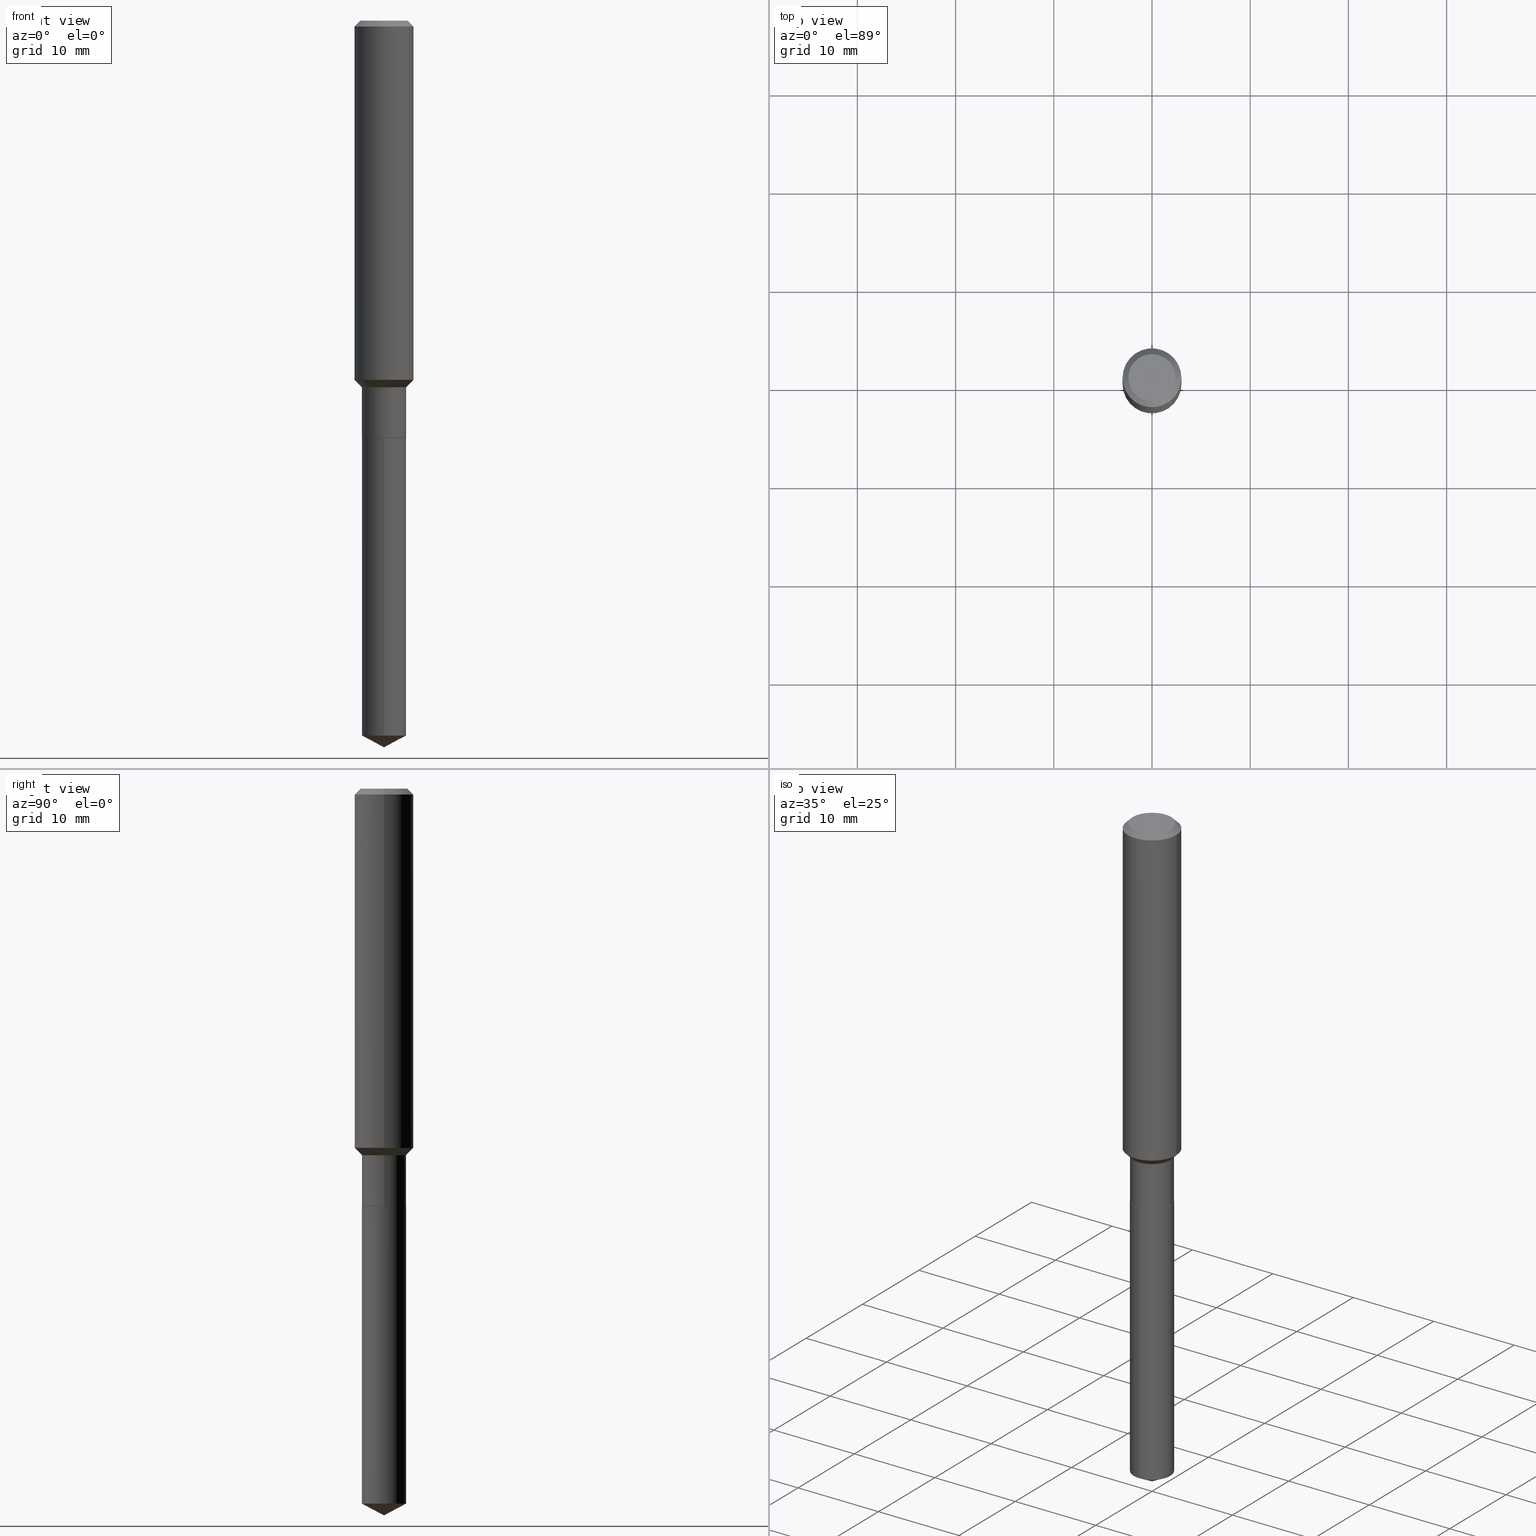
[diagram: canonical four-view strip — front | top / right | iso, engineering-drawing reading convention]
A machine part, canonical four-view strip (front | top / right | iso — engineering-drawing reading convention). The complete STEP part file that produces these views, byte-faithful:
ISO-10303-21;
HEADER;
FILE_DESCRIPTION (( 'STEP AP203' ),
    '1' );
FILE_NAME ('65175.STEP',
    '2024-04-24T20:57:34',
    ( '' ),
    ( '' ),
    'SwSTEP 2.0',
    'SolidWorks 2023',
    '' );
FILE_SCHEMA (( 'CONFIG_CONTROL_DESIGN' ));
ENDSEC;

DATA;
#1 = DIRECTION ( 'NONE',  ( -0.7071067811865491270, 7.493145998870360471E-15, 0.7071067811865459074 ) ) ;
#2 = CC_DESIGN_PERSON_AND_ORGANIZATION_ASSIGNMENT ( #115, #348, ( #235 ) ) ;
#3 = DIMENSIONAL_EXPONENTS ( 1.000000000000000000, 0.000000000000000000, 0.000000000000000000, 0.000000000000000000, 0.000000000000000000, 0.000000000000000000, 0.000000000000000000 ) ;
#4 = FACE_OUTER_BOUND ( 'NONE', #179, .T. ) ;
#5 = CIRCLE ( 'NONE', #82, 0.1180999999999999966 ) ;
#6 = CIRCLE ( 'NONE', #28, 0.08859999999999999820 ) ;
#7 = LINE ( 'NONE', #49, #311 ) ;
#8 = CYLINDRICAL_SURFACE ( 'NONE', #333, 0.1181000000000000799 ) ;
#9 = CARTESIAN_POINT ( 'NONE',  ( 4.090780218986497603E-29, -5.840549983616814265E-15, -1.672800000000000287 ) ) ;
#10 = CALENDAR_DATE ( 2024, 24, 4 ) ;
#11 = ADVANCED_FACE ( 'NONE', ( #305 ), #200, .T. ) ;
#12 = PERSON_AND_ORGANIZATION ( #246, #350 ) ;
#13 = ORIENTED_EDGE ( 'NONE', *, *, #298, .F. ) ;
#14 = AXIS2_PLACEMENT_3D ( 'NONE', #481, #19, #164 ) ;
#15 = MANIFOLD_SOLID_BREP ( 'Body-Move/Copy2[1]', #442 ) ;
#16 = SECURITY_CLASSIFICATION_LEVEL ( 'unclassified' ) ;
#17 = ORIENTED_EDGE ( 'NONE', *, *, #309, .F. ) ;
#18 = MANIFOLD_SOLID_BREP ( 'Body-Move/Copy2[2]', #163 ) ;
#19 = DIRECTION ( 'NONE',  ( -2.445523282040030004E-29, 3.491403326318364941E-15, 1.000000000000000000 ) ) ;
#20 = CIRCLE ( 'NONE', #147, 0.08859999999999999820 ) ;
#21 = VECTOR ( 'NONE', #34, 39.37007874015748143 ) ;
#22 = ORIENTED_EDGE ( 'NONE', *, *, #486, .T. ) ;
#23 = LINE ( 'NONE', #167, #73 ) ;
#24 = DIRECTION ( 'NONE',  ( -6.982962677686265133E-15, -1.000000000000000000, 3.083349879982238325E-15 ) ) ;
#25 = VERTEX_POINT ( 'NONE', #458 ) ;
#26 = CARTESIAN_POINT ( 'NONE',  ( 0.1180999999999999966, -9.071566814582237199E-16, -0.02362000000000014088 ) ) ;
#27 = CARTESIAN_POINT ( 'NONE',  ( -0.1180999999999999966, 7.422191030112725094E-16, -0.02362000000000014088 ) ) ;
#28 = AXIS2_PLACEMENT_3D ( 'NONE', #403, #63, #440 ) ;
#29 = ORIENTED_EDGE ( 'NONE', *, *, #205, .F. ) ;
#30 = CARTESIAN_POINT ( 'NONE',  ( 4.092002953389589284E-29, -5.842295724286235768E-15, -1.673300000000000232 ) ) ;
#31 = EDGE_LOOP ( 'NONE', ( #306, #213, #102, #408 ) ) ;
#32 = CARTESIAN_POINT ( 'NONE',  ( 0.08809999999999999776, -6.457494736190395714E-15, -1.673300000000000232 ) ) ;
#33 = ORIENTED_EDGE ( 'NONE', *, *, #55, .T. ) ;
#34 = DIRECTION ( 'NONE',  ( -2.445468806185136877E-29, 3.491481338843145188E-15, 1.000000000000000000 ) ) ;
#35 = CIRCLE ( 'NONE', #231, 0.09447999999999998066 ) ;
#36 = LINE ( 'NONE', #386, #366 ) ;
#37 = ADVANCED_FACE ( 'NONE', ( #336 ), #346, .T. ) ;
#38 = LINE ( 'NONE', #189, #210 ) ;
#39 = DIRECTION ( 'NONE',  ( -6.982962677686265133E-15, -1.000000000000000000, 3.083349879982238325E-15 ) ) ;
#40 = CARTESIAN_POINT ( 'NONE',  ( 7.124789128529243062E-29, -1.017185445089592806E-14, -2.913400000000000212 ) ) ;
#41 = DIRECTION ( 'NONE',  ( -6.165590087286836029E-15, -0.8829475928589264333, 0.4694715627858916385 ) ) ;
#42 = COORDINATED_UNIVERSAL_TIME_OFFSET ( 5, 0, .BEHIND. ) ;
#43 = AXIS2_PLACEMENT_3D ( 'NONE', #289, #97, #107 ) ;
#44 = SECURITY_CLASSIFICATION ( '', '', #16 ) ;
#45 = EDGE_CURVE ( 'NONE', #290, #204, #36, .T. ) ;
#46 = DIRECTION ( 'NONE',  ( -2.445468806185136597E-29, 3.491481338843145583E-15, 1.000000000000000000 ) ) ;
#47 = APPROVAL_ROLE ( '' ) ;
#48 = ADVANCED_FACE ( 'NONE', ( #111 ), #228, .T. ) ;
#49 = CARTESIAN_POINT ( 'NONE',  ( -0.1181000000000000799, 8.391509709326788873E-16, -5.809262341591047988E-30 ) ) ;
#50 = LOCAL_TIME ( 16, 57, 34.00000000000000000, #42 ) ;
#51 = CC_DESIGN_PERSON_AND_ORGANIZATION_ASSIGNMENT ( #236, #196, ( #359 ) ) ;
#52 = ORIENTED_EDGE ( 'NONE', *, *, #45, .T. ) ;
#53 = DIRECTION ( 'NONE',  ( -1.000000000000000000, 6.982962677686265922E-15, -4.876176775795935793E-29 ) ) ;
#54 = CIRCLE ( 'NONE', #347, 0.08809999999999999776 ) ;
#55 = EDGE_CURVE ( 'NONE', #105, #329, #463, .T. ) ;
#56 = EDGE_LOOP ( 'NONE', ( #29, #397, #62, #361 ) ) ;
#57 = EDGE_CURVE ( 'NONE', #253, #204, #20, .T. ) ;
#58 = ORIENTED_EDGE ( 'NONE', *, *, #57, .T. ) ;
#59 = CARTESIAN_POINT ( 'NONE',  ( -0.08859999999999998432, 6.295408638834486533E-16, -4.358176489965845566E-30 ) ) ;
#60 = LINE ( 'NONE', #218, #21 ) ;
#61 = EDGE_CURVE ( 'NONE', #25, #288, #90, .T. ) ;
#62 = ORIENTED_EDGE ( 'NONE', *, *, #448, .T. ) ;
#63 = DIRECTION ( 'NONE',  ( -2.445468806185136597E-29, 3.491481338843145583E-15, 1.000000000000000000 ) ) ;
#64 = AXIS2_PLACEMENT_3D ( 'NONE', #89, #96, #202 ) ;
#65 = ORIENTED_EDGE ( 'NONE', *, *, #86, .T. ) ;
#66 = CARTESIAN_POINT ( 'NONE',  ( 5.776197320209327532E-31, -8.246878922347559293E-17, -0.02362000000000014088 ) ) ;
#67 = ORIENTED_EDGE ( 'NONE', *, *, #125, .F. ) ;
#68 = CARTESIAN_POINT ( 'NONE',  ( 0.000000000000000000, 0.000000000000000000, 0.000000000000000000 ) ) ;
#69 = CARTESIAN_POINT ( 'NONE',  ( 4.716267017698007905E-46, -6.733579360998555036E-32, -1.928573779297252010E-17 ) ) ;
#70 = DIRECTION ( 'NONE',  ( -6.982962677686265133E-15, -1.000000000000000000, 3.083349879982238325E-15 ) ) ;
#71 = DIRECTION ( 'NONE',  ( 1.000000000000000000, -6.982962677686270655E-15, 0.000000000000000000 ) ) ;
#72 = AXIS2_PLACEMENT_3D ( 'NONE', #76, #420, #300 ) ;
#73 = VECTOR ( 'NONE', #285, 39.37007874015748143 ) ;
#74 = CARTESIAN_POINT ( 'NONE',  ( 4.092002953389589284E-29, -5.842295724286235768E-15, -1.673300000000000232 ) ) ;
#75 = DATE_AND_TIME ( #415, #275 ) ;
#76 = CARTESIAN_POINT ( 'NONE',  ( 3.593616410689059139E-29, -5.130731827430003304E-15, -1.469500000000000250 ) ) ;
#77 = DIRECTION ( 'NONE',  ( 1.000000000000000000, 0.000000000000000000, 0.000000000000000000 ) ) ;
#78 = UNCERTAINTY_MEASURE_WITH_UNIT (LENGTH_MEASURE( 1.000000000000000082E-05 ), #297, 'distance_accuracy_value', 'NONE');
#79 = DIRECTION ( 'NONE',  ( 1.000000000000000000, -6.982962677686264344E-15, 0.000000000000000000 ) ) ;
#80 = ORIENTED_EDGE ( 'NONE', *, *, #486, .F. ) ;
#81 = COORDINATED_UNIVERSAL_TIME_OFFSET ( 5, 0, .BEHIND. ) ;
#82 = AXIS2_PLACEMENT_3D ( 'NONE', #66, #446, #168 ) ;
#83 = EDGE_LOOP ( 'NONE', ( #162, #95, #247, #209 ) ) ;
#84 = VECTOR ( 'NONE', #428, 39.37007874015748143 ) ;
#85 = APPROVAL_PERSON_ORGANIZATION ( #351, #411, #238 ) ;
#86 = EDGE_CURVE ( 'NONE', #135, #487, #377, .T. ) ;
#87 = CIRCLE ( 'NONE', #368, 0.08859999999999999820 ) ;
#88 = EDGE_LOOP ( 'NONE', ( #292, #198, #296, #149 ) ) ;
#89 = CARTESIAN_POINT ( 'NONE',  ( 4.092002953389589284E-29, -5.842295724286235768E-15, -1.673300000000000232 ) ) ;
#90 = CIRCLE ( 'NONE', #414, 0.08859999999999999820 ) ;
#91 = AXIS2_PLACEMENT_3D ( 'NONE', #373, #146, #79 ) ;
#92 = ORIENTED_EDGE ( 'NONE', *, *, #349, .T. ) ;
#93 = CARTESIAN_POINT ( 'NONE',  ( 0.1180999999999999966, -8.926936027602933910E-16, -0.02362000000000014088 ) ) ;
#94 = DIRECTION ( 'NONE',  ( -2.445468806185136597E-29, 3.491481338843145583E-15, 1.000000000000000000 ) ) ;
#95 = ORIENTED_EDGE ( 'NONE', *, *, #298, .T. ) ;
#96 = DIRECTION ( 'NONE',  ( -2.438088387897960049E-29, 3.491481338843145188E-15, 1.000000000000000000 ) ) ;
#97 = DIRECTION ( 'NONE',  ( -2.445468806185136597E-29, 3.491481338843145583E-15, 1.000000000000000000 ) ) ;
#98 = ORIENTED_EDGE ( 'NONE', *, *, #221, .F. ) ;
#99 = CARTESIAN_POINT ( 'NONE',  ( 2.358133508849003952E-46, -3.366789680499277518E-32, -9.642868896486260050E-18 ) ) ;
#100 = DIRECTION ( 'NONE',  ( 1.000000000000000000, -6.982962677686264344E-15, 0.000000000000000000 ) ) ;
#101 = CIRCLE ( 'NONE', #117, 0.1181000000000001632 ) ;
#102 = ORIENTED_EDGE ( 'NONE', *, *, #55, .F. ) ;
#103 = DIRECTION ( 'NONE',  ( 1.000000000000000000, -6.982962677686264344E-15, 0.000000000000000000 ) ) ;
#104 = DIRECTION ( 'NONE',  ( -0.7071067811865459074, 2.468850131082240100E-15, -0.7071067811865491270 ) ) ;
#105 = VERTEX_POINT ( 'NONE', #337 ) ;
#106 = APPLICATION_PROTOCOL_DEFINITION ( 'international standard', 'config_control_design', 1994, #269 ) ;
#107 = DIRECTION ( 'NONE',  ( 1.000000000000000000, -6.982962677686264344E-15, 0.000000000000000000 ) ) ;
#108 = CARTESIAN_POINT ( 'NONE',  ( 7.009489104862845842E-29, -1.000750687911291857E-14, -2.866290544354793468 ) ) ;
#109 =( NAMED_UNIT ( * ) PLANE_ANGLE_UNIT ( ) SI_UNIT ( $, .RADIAN. ) );
#110 =( GEOMETRIC_REPRESENTATION_CONTEXT ( 3 ) GLOBAL_UNCERTAINTY_ASSIGNED_CONTEXT ( ( #78 ) ) GLOBAL_UNIT_ASSIGNED_CONTEXT ( ( #297, #109, #255 ) ) REPRESENTATION_CONTEXT ( 'NONE', 'WORKASPACE' ) );
#111 = FACE_OUTER_BOUND ( 'NONE', #374, .T. ) ;
#112 = EDGE_LOOP ( 'NONE', ( #80, #52, #250 ) ) ;
#113 = EDGE_LOOP ( 'NONE', ( #268, #243, #436, #13 ) ) ;
#114 = ADVANCED_FACE ( 'NONE', ( #4 ), #454, .F. ) ;
#115 = PERSON_AND_ORGANIZATION ( #246, #350 ) ;
#116 = APPROVAL_STATUS ( 'not_yet_approved' ) ;
#117 = AXIS2_PLACEMENT_3D ( 'NONE', #484, #399, #437 ) ;
#118 = CC_DESIGN_APPROVAL ( #321, ( #44 ) ) ;
#119 = EDGE_CURVE ( 'NONE', #329, #480, #38, .T. ) ;
#120 = DIRECTION ( 'NONE',  ( 2.438088387897960049E-29, -3.491481338843145188E-15, -1.000000000000000000 ) ) ;
#121 = EDGE_CURVE ( 'NONE', #288, #25, #356, .T. ) ;
#122 = ADVANCED_BREP_SHAPE_REPRESENTATION ( '65175', ( #15, #18, #187 ), #110 ) ;
#123 = CYLINDRICAL_SURFACE ( 'NONE', #284, 0.1181000000000000799 ) ;
#124 = ORIENTED_EDGE ( 'NONE', *, *, #61, .F. ) ;
#125 = EDGE_CURVE ( 'NONE', #478, #401, #5, .T. ) ;
#126 = VECTOR ( 'NONE', #207, 39.37007874015748143 ) ;
#127 = CARTESIAN_POINT ( 'NONE',  ( 7.124787529895424657E-29, -1.017185445089592491E-14, -2.913400000000000212 ) ) ;
#128 = ORIENTED_EDGE ( 'NONE', *, *, #457, .F. ) ;
#129 = FACE_OUTER_BOUND ( 'NONE', #421, .T. ) ;
#130 = CC_DESIGN_DATE_AND_TIME_ASSIGNMENT ( #307, #426, ( #235 ) ) ;
#131 = DIRECTION ( 'NONE',  ( 2.445468806185136597E-29, -3.491481338843145583E-15, -1.000000000000000000 ) ) ;
#132 = EDGE_LOOP ( 'NONE', ( #229, #489, #215, #474 ) ) ;
#133 = FACE_OUTER_BOUND ( 'NONE', #317, .T. ) ;
#134 = DIRECTION ( 'NONE',  ( -2.445523282040030284E-29, 3.491403326318364941E-15, 1.000000000000000000 ) ) ;
#135 = VERTEX_POINT ( 'NONE', #208 ) ;
#136 = LENGTH_MEASURE_WITH_UNIT ( LENGTH_MEASURE( 0.02539999999999999897 ), #216 );
#137 = AXIS2_PLACEMENT_3D ( 'NONE', #176, #482, #71 ) ;
#138 = CARTESIAN_POINT ( 'NONE',  ( -6.186904932429332373E-16, -0.08860000000001003184, -2.866290544354793024 ) ) ;
#139 = ORIENTED_EDGE ( 'NONE', *, *, #217, .T. ) ;
#140 = FACE_OUTER_BOUND ( 'NONE', #113, .T. ) ;
#141 = CARTESIAN_POINT ( 'NONE',  ( 4.092002953389589284E-29, -5.842295724286235768E-15, -1.673300000000000232 ) ) ;
#142 = ADVANCED_FACE ( 'NONE', ( #140 ), #404, .T. ) ;
#143 = DIRECTION ( 'NONE',  ( 2.445468806185136597E-29, -3.491481338843145583E-15, -1.000000000000000000 ) ) ;
#144 = CARTESIAN_POINT ( 'NONE',  ( 0.09447999999999998066, -7.704367267948738690E-16, -1.928573779296752193E-17 ) ) ;
#145 = EDGE_CURVE ( 'NONE', #483, #332, #470, .T. ) ;
#146 = DIRECTION ( 'NONE',  ( -2.445468806185136597E-29, 3.491481338843145583E-15, 1.000000000000000000 ) ) ;
#147 = AXIS2_PLACEMENT_3D ( 'NONE', #108, #376, #342 ) ;
#148 = VECTOR ( 'NONE', #186, 39.37007874015748143 ) ;
#149 = ORIENTED_EDGE ( 'NONE', *, *, #467, .F. ) ;
#150 = DIRECTION ( 'NONE',  ( 1.000000000000000000, -6.982962677686266711E-15, 4.876176775795936353E-29 ) ) ;
#151 = ORIENTED_EDGE ( 'NONE', *, *, #170, .F. ) ;
#152 = CARTESIAN_POINT ( 'NONE',  ( -0.09447999999999998066, 7.009847083995354710E-16, -1.928573779297727792E-17 ) ) ;
#153 = PERSON_AND_ORGANIZATION_ROLE ( 'design_supplier' ) ;
#154 = VECTOR ( 'NONE', #395, 39.37007874015748143 ) ;
#155 = CALENDAR_DATE ( 2024, 24, 4 ) ;
#156 = ORIENTED_EDGE ( 'NONE', *, *, #274, .F. ) ;
#157 = APPROVAL_PERSON_ORGANIZATION ( #339, #419, #452 ) ;
#158 = PRODUCT ( '65175', '65175', '', ( #330 ) ) ;
#159 = DATE_AND_TIME ( #155, #381 ) ;
#160 = ORIENTED_EDGE ( 'NONE', *, *, #61, .T. ) ;
#161 = DESIGN_CONTEXT ( 'detailed design', #269, 'design' ) ;
#162 = ORIENTED_EDGE ( 'NONE', *, *, #363, .F. ) ;
#163 = CLOSED_SHELL ( 'NONE', ( #263, #37, #443, #11, #335, #355, #142, #315, #184, #430, #400, #490 ) ) ;
#164 = DIRECTION ( 'NONE',  ( -6.982962677686266711E-15, -1.000000000000000000, 3.541896320645556530E-15 ) ) ;
#165 = DIRECTION ( 'NONE',  ( -6.982962677686265133E-15, -1.000000000000000000, 6.166699759964476650E-15 ) ) ;
#166 = ORIENTED_EDGE ( 'NONE', *, *, #145, .T. ) ;
#167 = CARTESIAN_POINT ( 'NONE',  ( -6.186904932429622279E-16, -0.08860000000000584075, -1.673299999999999788 ) ) ;
#168 = DIRECTION ( 'NONE',  ( 1.000000000000000000, -6.982962677686266711E-15, 0.000000000000000000 ) ) ;
#169 = VERTEX_POINT ( 'NONE', #32 ) ;
#170 = EDGE_CURVE ( 'NONE', #253, #25, #476, .T. ) ;
#171 = CARTESIAN_POINT ( 'NONE',  ( -0.1181000000000001632, -4.188582157001450874E-15, -1.440000000000000169 ) ) ;
#172 = AXIS2_PLACEMENT_3D ( 'NONE', #74, #223, #382 ) ;
#173 = CONICAL_SURFACE ( 'NONE', #357, 74.04434902938362484, 1.082104136236486935 ) ;
#174 = CARTESIAN_POINT ( 'NONE',  ( 4.092002953389589284E-29, -5.842295724286235768E-15, -1.673300000000000232 ) ) ;
#175 = ORIENTED_EDGE ( 'NONE', *, *, #227, .T. ) ;
#176 = CARTESIAN_POINT ( 'NONE',  ( 3.593616410689059139E-29, -5.130731827430003304E-15, -1.469500000000000250 ) ) ;
#177 = EDGE_LOOP ( 'NONE', ( #367, #65, #92, #156 ) ) ;
#178 = CARTESIAN_POINT ( 'NONE',  ( 5.776197320209327532E-31, -8.246878922347559293E-17, -0.02362000000000014088 ) ) ;
#179 = EDGE_LOOP ( 'NONE', ( #206, #160 ) ) ;
#180 = CARTESIAN_POINT ( 'NONE',  ( 0.08859999999999999820, -6.459240476859818007E-15, -1.672800000000000287 ) ) ;
#181 = LINE ( 'NONE', #439, #464 ) ;
#182 = VECTOR ( 'NONE', #460, 39.37007874015748143 ) ;
#183 = DIRECTION ( 'NONE',  ( -2.445468806185136597E-29, 3.491481338843145583E-15, 1.000000000000000000 ) ) ;
#184 = ADVANCED_FACE ( 'NONE', ( #291 ), #251, .T. ) ;
#185 = CARTESIAN_POINT ( 'NONE',  ( 5.776197320209327532E-31, -8.246878922347559293E-17, -0.02362000000000014088 ) ) ;
#186 = DIRECTION ( 'NONE',  ( 6.273719981627766865E-15, 0.8829475928589298750, 0.4694715627858853657 ) ) ;
#187 = AXIS2_PLACEMENT_3D ( 'NONE', #68, #418, #77 ) ;
#188 = DIRECTION ( 'NONE',  ( 1.000000000000000000, -6.982962677686265922E-15, 4.876176775795935232E-29 ) ) ;
#189 = CARTESIAN_POINT ( 'NONE',  ( -0.08859999999999998432, -4.501190963546554453E-15, -1.469500000000000250 ) ) ;
#190 = DIRECTION ( 'NONE',  ( -2.445468806185136597E-29, 3.491481338843145583E-15, 1.000000000000000000 ) ) ;
#191 = CARTESIAN_POINT ( 'NONE',  ( 3.593616410689059139E-29, -5.130731827430003304E-15, -1.469500000000000250 ) ) ;
#192 = AXIS2_PLACEMENT_3D ( 'NONE', #212, #371, #407 ) ;
#193 = DIRECTION ( 'NONE',  ( -2.445468806185136597E-29, 3.491481338843145583E-15, 1.000000000000000000 ) ) ;
#194 = SHAPE_DEFINITION_REPRESENTATION ( #341, #122 ) ;
#195 = EDGE_CURVE ( 'NONE', #487, #135, #6, .T. ) ;
#196 = PERSON_AND_ORGANIZATION_ROLE ( 'creator' ) ;
#197 = EDGE_LOOP ( 'NONE', ( #139, #166 ) ) ;
#198 = ORIENTED_EDGE ( 'NONE', *, *, #170, .T. ) ;
#199 = DIRECTION ( 'NONE',  ( 0.7071067811865491270, -2.468850131082274021E-15, 0.7071067811865459074 ) ) ;
#200 = CONICAL_SURFACE ( 'NONE', #72, 0.08859999999999998432, 0.7853981633974506105 ) ;
#201 = AXIS2_PLACEMENT_3D ( 'NONE', #178, #131, #488 ) ;
#202 = DIRECTION ( 'NONE',  ( 1.000000000000000000, -6.982962677686265922E-15, 4.876176775795935793E-29 ) ) ;
#203 = LOCAL_TIME ( 16, 57, 34.00000000000000000, #81 ) ;
#204 = VERTEX_POINT ( 'NONE', #138 ) ;
#205 = EDGE_CURVE ( 'NONE', #417, #135, #299, .T. ) ;
#206 = ORIENTED_EDGE ( 'NONE', *, *, #121, .T. ) ;
#207 = DIRECTION ( 'NONE',  ( -2.445468806185136877E-29, 3.491481338843145188E-15, 1.000000000000000000 ) ) ;
#208 = CARTESIAN_POINT ( 'NONE',  ( -0.08859999999999999820, -4.856100041639960723E-15, -1.672800000000000287 ) ) ;
#209 = ORIENTED_EDGE ( 'NONE', *, *, #302, .F. ) ;
#210 = VECTOR ( 'NONE', #1, 39.37007874015748143 ) ;
#211 = AXIS2_PLACEMENT_3D ( 'NONE', #435, #94, #249 ) ;
#212 = CARTESIAN_POINT ( 'NONE',  ( 5.776197320209327532E-31, -8.246878922347559293E-17, -0.02362000000000014088 ) ) ;
#213 = ORIENTED_EDGE ( 'NONE', *, *, #475, .T. ) ;
#214 = DIRECTION ( 'NONE',  ( 1.000000000000000000, -6.982962677686270655E-15, 0.000000000000000000 ) ) ;
#215 = ORIENTED_EDGE ( 'NONE', *, *, #195, .F. ) ;
#216 =( LENGTH_UNIT ( ) NAMED_UNIT ( * ) SI_UNIT ( $, .METRE. ) );
#217 = EDGE_CURVE ( 'NONE', #332, #483, #35, .T. ) ;
#218 = CARTESIAN_POINT ( 'NONE',  ( 0.1181000000000000799, -8.246878922347486570E-16, 5.758764772215004644E-30 ) ) ;
#219 = DIRECTION ( 'NONE',  ( 1.000000000000000000, -6.982962677686270655E-15, 0.000000000000000000 ) ) ;
#220 = CONICAL_SURFACE ( 'NONE', #14, 74.04434902938362484, 1.082104136236486935 ) ;
#221 = EDGE_CURVE ( 'NONE', #466, #480, #101, .T. ) ;
#222 = DIRECTION ( 'NONE',  ( -6.982962677686266711E-15, -1.000000000000000000, 3.541896320645556530E-15 ) ) ;
#223 = DIRECTION ( 'NONE',  ( 2.445523282040029724E-29, -3.491403326318364941E-15, -1.000000000000000000 ) ) ;
#224 = CC_DESIGN_APPROVAL ( #419, ( #235 ) ) ;
#225 = LINE ( 'NONE', #40, #148 ) ;
#226 = CYLINDRICAL_SURFACE ( 'NONE', #241, 0.08859999999999998432 ) ;
#227 = EDGE_CURVE ( 'NONE', #332, #401, #295, .T. ) ;
#228 = CYLINDRICAL_SURFACE ( 'NONE', #485, 0.08859999999999999820 ) ;
#229 = ORIENTED_EDGE ( 'NONE', *, *, #309, .T. ) ;
#230 = AXIS2_PLACEMENT_3D ( 'NONE', #185, #143, #410 ) ;
#231 = AXIS2_PLACEMENT_3D ( 'NONE', #69, #245, #479 ) ;
#232 = CALENDAR_DATE ( 2024, 24, 4 ) ;
#233 = CC_DESIGN_SECURITY_CLASSIFICATION ( #44, ( #359 ) ) ;
#234 = DIRECTION ( 'NONE',  ( -2.445468806185136597E-29, 3.491481338843145583E-15, 1.000000000000000000 ) ) ;
#235 = PRODUCT_DEFINITION ( 'UNKNOWN', '', #359, #161 ) ;
#236 = PERSON_AND_ORGANIZATION ( #246, #350 ) ;
#237 = EDGE_CURVE ( 'NONE', #417, #169, #54, .T. ) ;
#238 = APPROVAL_ROLE ( '' ) ;
#239 = CARTESIAN_POINT ( 'NONE',  ( -0.08809999999999999776, -5.213658346907477404E-15, -1.673300000000000232 ) ) ;
#240 = ORIENTED_EDGE ( 'NONE', *, *, #467, .T. ) ;
#241 = AXIS2_PLACEMENT_3D ( 'NONE', #267, #46, #384 ) ;
#242 = CARTESIAN_POINT ( 'NONE',  ( 0.08809999999999999776, -6.457494736190395714E-15, -1.673300000000000232 ) ) ;
#243 = ORIENTED_EDGE ( 'NONE', *, *, #274, .T. ) ;
#244 = CARTESIAN_POINT ( 'NONE',  ( 7.009489104862845842E-29, -1.000750687911291857E-14, -2.866290544354793468 ) ) ;
#245 = DIRECTION ( 'NONE',  ( -2.445468806185136597E-29, 3.491481338843145583E-15, 1.000000000000000000 ) ) ;
#246 = PERSON ( 'UNSPECIFIED', 'UNSPECIFIED', 'UNSPECIFIED', ('UNSPECIFIED'), ('UNSPECIFIED'), ('UNSPECIFIED') ) ;
#247 = ORIENTED_EDGE ( 'NONE', *, *, #271, .T. ) ;
#248 = LINE ( 'NONE', #93, #84 ) ;
#249 = DIRECTION ( 'NONE',  ( 1.000000000000000000, -6.982962677686263555E-15, 0.000000000000000000 ) ) ;
#250 = ORIENTED_EDGE ( 'NONE', *, *, #57, .F. ) ;
#251 = CONICAL_SURFACE ( 'NONE', #201, 0.1180999999999999966, 0.7853981633974460586 ) ;
#252 = CARTESIAN_POINT ( 'NONE',  ( 6.295408638835189605E-16, 0.08859999999999000619, -2.866290544354793912 ) ) ;
#253 = VERTEX_POINT ( 'NONE', #252 ) ;
#254 = CC_DESIGN_DATE_AND_TIME_ASSIGNMENT ( #343, #387, ( #44 ) ) ;
#255 =( NAMED_UNIT ( * ) SI_UNIT ( $, .STERADIAN. ) SOLID_ANGLE_UNIT ( ) );
#256 = CARTESIAN_POINT ( 'NONE',  ( 6.295408638834894768E-16, 0.08859999999999415565, -1.673300000000000454 ) ) ;
#257 = ORIENTED_EDGE ( 'NONE', *, *, #221, .T. ) ;
#258 = APPROVAL_STATUS ( 'not_yet_approved' ) ;
#259 = CARTESIAN_POINT ( 'NONE',  ( 3.593616410689059139E-29, -5.130731827430003304E-15, -1.469500000000000250 ) ) ;
#260 = DIRECTION ( 'NONE',  ( -2.445468806185136597E-29, 3.491481338843145583E-15, 1.000000000000000000 ) ) ;
#261 = COORDINATED_UNIVERSAL_TIME_OFFSET ( 5, 0, .BEHIND. ) ;
#262 = AXIS2_PLACEMENT_3D ( 'NONE', #459, #190, #103 ) ;
#263 = ADVANCED_FACE ( 'NONE', ( #409 ), #304, .T. ) ;
#264 = CARTESIAN_POINT ( 'NONE',  ( -0.08859999999999998432, -4.856100041639960723E-15, -1.469500000000000250 ) ) ;
#265 = CARTESIAN_POINT ( 'NONE',  ( 4.092002953389589284E-29, -5.842295724286235768E-15, -1.673300000000000232 ) ) ;
#266 = ORIENTED_EDGE ( 'NONE', *, *, #145, .F. ) ;
#267 = CARTESIAN_POINT ( 'NONE',  ( 0.000000000000000000, 0.000000000000000000, 0.000000000000000000 ) ) ;
#268 = ORIENTED_EDGE ( 'NONE', *, *, #119, .F. ) ;
#269 = APPLICATION_CONTEXT ( 'configuration controlled 3d designs of mechanical parts and assemblies' ) ;
#270 = APPROVAL_STATUS ( 'not_yet_approved' ) ;
#271 = EDGE_CURVE ( 'NONE', #466, #478, #60, .T. ) ;
#272 = CIRCLE ( 'NONE', #192, 0.1180999999999999966 ) ;
#273 = APPROVAL_DATE_TIME ( #462, #321 ) ;
#274 = EDGE_CURVE ( 'NONE', #329, #105, #456, .T. ) ;
#275 = LOCAL_TIME ( 16, 57, 34.00000000000000000, #261 ) ;
#276 = CARTESIAN_POINT ( 'NONE',  ( 0.000000000000000000, 0.000000000000000000, 0.000000000000000000 ) ) ;
#277 = CALENDAR_DATE ( 2024, 24, 4 ) ;
#278 = ADVANCED_FACE ( 'NONE', ( #334 ), #412, .T. ) ;
#279 = APPROVAL_DATE_TIME ( #159, #411 ) ;
#280 = PRODUCT_RELATED_PRODUCT_CATEGORY ( 'detail', '', ( #158 ) ) ;
#281 = FACE_OUTER_BOUND ( 'NONE', #112, .T. ) ;
#282 = DIRECTION ( 'NONE',  ( 1.000000000000000000, -6.982962677686266711E-15, 4.876176775795936353E-29 ) ) ;
#283 = ORIENTED_EDGE ( 'NONE', *, *, #45, .F. ) ;
#284 = AXIS2_PLACEMENT_3D ( 'NONE', #318, #473, #282 ) ;
#285 = DIRECTION ( 'NONE',  ( -2.445523282040030284E-29, 3.491403326318364941E-15, 1.000000000000000000 ) ) ;
#286 = CC_DESIGN_PERSON_AND_ORGANIZATION_ASSIGNMENT ( #422, #153, ( #359 ) ) ;
#287 = DIRECTION ( 'NONE',  ( -2.445468806185136597E-29, 3.491481338843145583E-15, 1.000000000000000000 ) ) ;
#288 = VERTEX_POINT ( 'NONE', #323 ) ;
#289 = CARTESIAN_POINT ( 'NONE',  ( 4.092002953389589284E-29, -5.842295724286235768E-15, -1.673300000000000232 ) ) ;
#290 = VERTEX_POINT ( 'NONE', #127 ) ;
#291 = FACE_OUTER_BOUND ( 'NONE', #444, .T. ) ;
#292 = ORIENTED_EDGE ( 'NONE', *, *, #457, .T. ) ;
#293 = AXIS2_PLACEMENT_3D ( 'NONE', #338, #303, #328 ) ;
#294 = FACE_OUTER_BOUND ( 'NONE', #56, .T. ) ;
#295 = LINE ( 'NONE', #27, #424 ) ;
#296 = ORIENTED_EDGE ( 'NONE', *, *, #121, .F. ) ;
#297 =( CONVERSION_BASED_UNIT ( 'INCH', #136 ) LENGTH_UNIT ( ) NAMED_UNIT ( #3 ) );
#298 = EDGE_CURVE ( 'NONE', #480, #466, #378, .T. ) ;
#299 = LINE ( 'NONE', #375, #445 ) ;
#300 = DIRECTION ( 'NONE',  ( 1.000000000000000000, -6.982962677686270655E-15, 0.000000000000000000 ) ) ;
#301 = PERSON_AND_ORGANIZATION_ROLE ( 'design_owner' ) ;
#302 = EDGE_CURVE ( 'NONE', #401, #478, #272, .T. ) ;
#303 = DIRECTION ( 'NONE',  ( -2.445523282040030004E-29, 3.491403326318364941E-15, 1.000000000000000000 ) ) ;
#304 = CONICAL_SURFACE ( 'NONE', #43, 0.08809999999999999776, 0.7853981633975507526 ) ;
#305 = FACE_OUTER_BOUND ( 'NONE', #433, .T. ) ;
#306 = ORIENTED_EDGE ( 'NONE', *, *, #195, .T. ) ;
#307 = DATE_AND_TIME ( #232, #203 ) ;
#308 = FACE_OUTER_BOUND ( 'NONE', #31, .T. ) ;
#309 = EDGE_CURVE ( 'NONE', #169, #417, #340, .T. ) ;
#310 = COORDINATED_UNIVERSAL_TIME_OFFSET ( 5, 0, .BEHIND. ) ;
#311 = VECTOR ( 'NONE', #469, 39.37007874015748143 ) ;
#312 = LOCAL_TIME ( 16, 57, 34.00000000000000000, #310 ) ;
#313 = APPLICATION_CONTEXT ( 'configuration controlled 3d designs of mechanical parts and assemblies' ) ;
#314 = PERSON_AND_ORGANIZATION_ROLE ( 'classification_officer' ) ;
#315 = ADVANCED_FACE ( 'NONE', ( #416 ), #8, .T. ) ;
#316 = PERSON_AND_ORGANIZATION ( #246, #350 ) ;
#317 = EDGE_LOOP ( 'NONE', ( #257, #345, #67, #447 ) ) ;
#318 = CARTESIAN_POINT ( 'NONE',  ( 0.000000000000000000, 0.000000000000000000, 0.000000000000000000 ) ) ;
#319 = APPROVAL_PERSON_ORGANIZATION ( #12, #321, #47 ) ;
#320 = CARTESIAN_POINT ( 'NONE',  ( 0.1181000000000001632, -5.852421020168879700E-15, -1.440000000000000169 ) ) ;
#321 = APPROVAL ( #116, 'UNSPECIFIED' ) ;
#322 = ORIENTED_EDGE ( 'NONE', *, *, #369, .F. ) ;
#323 = CARTESIAN_POINT ( 'NONE',  ( -6.186904932429622279E-16, -0.08860000000000584075, -1.673299999999999788 ) ) ;
#324 = ORIENTED_EDGE ( 'NONE', *, *, #217, .F. ) ;
#325 = CARTESIAN_POINT ( 'NONE',  ( -0.1180999999999999966, -1.715949987646123475E-15, -0.02362000000000014088 ) ) ;
#326 = DIRECTION ( 'NONE',  ( 1.000000000000000000, -6.982962677686267499E-15, 4.875432709231658792E-29 ) ) ;
#327 = ORIENTED_EDGE ( 'NONE', *, *, #119, .T. ) ;
#328 = DIRECTION ( 'NONE',  ( -6.982962677686265133E-15, -1.000000000000000000, 3.083349879982238325E-15 ) ) ;
#329 = VERTEX_POINT ( 'NONE', #264 ) ;
#330 = MECHANICAL_CONTEXT ( 'NONE', #313, 'mechanical' ) ;
#331 = DIRECTION ( 'NONE',  ( -2.445468806185136597E-29, 3.491481338843145583E-15, 1.000000000000000000 ) ) ;
#332 = VERTEX_POINT ( 'NONE', #152 ) ;
#333 = AXIS2_PLACEMENT_3D ( 'NONE', #453, #379, #150 ) ;
#334 = FACE_OUTER_BOUND ( 'NONE', #88, .T. ) ;
#335 = ADVANCED_FACE ( 'NONE', ( #308 ), #465, .T. ) ;
#336 = FACE_OUTER_BOUND ( 'NONE', #364, .T. ) ;
#337 = CARTESIAN_POINT ( 'NONE',  ( 0.08859999999999998432, -5.749422320673006256E-15, -1.469500000000000250 ) ) ;
#338 = CARTESIAN_POINT ( 'NONE',  ( 4.092002953389589284E-29, -5.842295724286235768E-15, -1.673300000000000232 ) ) ;
#339 = PERSON_AND_ORGANIZATION ( #246, #350 ) ;
#340 = CIRCLE ( 'NONE', #91, 0.08809999999999999776 ) ;
#341 = PRODUCT_DEFINITION_SHAPE ( 'NONE', 'NONE',  #235 ) ;
#342 = DIRECTION ( 'NONE',  ( -6.982962677686265133E-15, -1.000000000000000000, 6.166699759964476650E-15 ) ) ;
#343 = DATE_AND_TIME ( #10, #312 ) ;
#344 = CARTESIAN_POINT ( 'NONE',  ( 0.08859999999999998432, -6.186904932430030515E-16, 4.320292623355198064E-30 ) ) ;
#345 = ORIENTED_EDGE ( 'NONE', *, *, #363, .T. ) ;
#346 = CONICAL_SURFACE ( 'NONE', #230, 0.1180999999999999966, 0.7853981633974460586 ) ;
#347 = AXIS2_PLACEMENT_3D ( 'NONE', #174, #331, #100 ) ;
#348 = PERSON_AND_ORGANIZATION_ROLE ( 'creator' ) ;
#349 = EDGE_CURVE ( 'NONE', #487, #105, #425, .T. ) ;
#350 = ORGANIZATION ( 'UNSPECIFIED', 'UNSPECIFIED', '' ) ;
#351 = PERSON_AND_ORGANIZATION ( #246, #350 ) ;
#352 = DIRECTION ( 'NONE',  ( -2.445523282040030004E-29, 3.491403326318364941E-15, 1.000000000000000000 ) ) ;
#353 = ORIENTED_EDGE ( 'NONE', *, *, #396, .T. ) ;
#354 = FACE_OUTER_BOUND ( 'NONE', #392, .T. ) ;
#355 = ADVANCED_FACE ( 'NONE', ( #391 ), #226, .T. ) ;
#356 = CIRCLE ( 'NONE', #293, 0.08859999999999999820 ) ;
#357 = AXIS2_PLACEMENT_3D ( 'NONE', #427, #352, #222 ) ;
#358 = DIRECTION ( 'NONE',  ( -2.445523282040030004E-29, 3.491403326318364941E-15, 1.000000000000000000 ) ) ;
#359 = PRODUCT_DEFINITION_FORMATION_WITH_SPECIFIED_SOURCE ( 'ANY', '', #158, .NOT_KNOWN. ) ;
#360 = ADVANCED_FACE ( 'NONE', ( #281 ), #173, .T. ) ;
#361 = ORIENTED_EDGE ( 'NONE', *, *, #86, .F. ) ;
#362 = DIRECTION ( 'NONE',  ( -2.445523282040030004E-29, 3.491403326318364941E-15, 1.000000000000000000 ) ) ;
#363 = EDGE_CURVE ( 'NONE', #480, #401, #7, .T. ) ;
#364 = EDGE_LOOP ( 'NONE', ( #266, #353, #405, #461 ) ) ;
#365 = CARTESIAN_POINT ( 'NONE',  ( 4.716267017698007905E-46, -6.733579360998555036E-32, -1.928573779297252010E-17 ) ) ;
#366 = VECTOR ( 'NONE', #41, 39.37007874015748143 ) ;
#367 = ORIENTED_EDGE ( 'NONE', *, *, #475, .F. ) ;
#368 = AXIS2_PLACEMENT_3D ( 'NONE', #244, #358, #165 ) ;
#369 = EDGE_CURVE ( 'NONE', #105, #466, #181, .T. ) ;
#370 = FACE_OUTER_BOUND ( 'NONE', #197, .T. ) ;
#371 = DIRECTION ( 'NONE',  ( -2.445468806185136597E-29, 3.491481338843145583E-15, 1.000000000000000000 ) ) ;
#372 = ORIENTED_EDGE ( 'NONE', *, *, #302, .T. ) ;
#373 = CARTESIAN_POINT ( 'NONE',  ( 4.092002953389589284E-29, -5.842295724286235768E-15, -1.673300000000000232 ) ) ;
#374 = EDGE_LOOP ( 'NONE', ( #151, #58, #240, #124 ) ) ;
#375 = CARTESIAN_POINT ( 'NONE',  ( -0.08809999999999999776, -5.216307574081587816E-15, -1.673300000000000232 ) ) ;
#376 = DIRECTION ( 'NONE',  ( -2.445523282040030004E-29, 3.491403326318364941E-15, 1.000000000000000000 ) ) ;
#377 = CIRCLE ( 'NONE', #431, 0.08859999999999999820 ) ;
#378 = CIRCLE ( 'NONE', #211, 0.1181000000000001632 ) ;
#379 = DIRECTION ( 'NONE',  ( -2.445468806185136597E-29, 3.491481338843145583E-15, 1.000000000000000000 ) ) ;
#380 = CC_DESIGN_PERSON_AND_ORGANIZATION_ASSIGNMENT ( #316, #314, ( #44 ) ) ;
#381 = LOCAL_TIME ( 16, 57, 34.00000000000000000, #390 ) ;
#382 = DIRECTION ( 'NONE',  ( 6.982962677686265922E-15, 1.000000000000000000, -3.491403326318364941E-15 ) ) ;
#383 = APPROVAL_DATE_TIME ( #75, #419 ) ;
#384 = DIRECTION ( 'NONE',  ( 1.000000000000000000, -6.982962677686265922E-15, 4.876176775795935232E-29 ) ) ;
#385 = DIRECTION ( 'NONE',  ( -2.445523282040030004E-29, 3.491403326318364941E-15, 1.000000000000000000 ) ) ;
#386 = CARTESIAN_POINT ( 'NONE',  ( 7.124605220999436828E-29, -1.017211552761135770E-14, -2.913400000000000212 ) ) ;
#387 = DATE_TIME_ROLE ( 'classification_date' ) ;
#388 = CC_DESIGN_PERSON_AND_ORGANIZATION_ASSIGNMENT ( #449, #301, ( #158 ) ) ;
#389 = AXIS2_PLACEMENT_3D ( 'NONE', #30, #362, #24 ) ;
#390 = COORDINATED_UNIVERSAL_TIME_OFFSET ( 5, 0, .BEHIND. ) ;
#391 = FACE_OUTER_BOUND ( 'NONE', #177, .T. ) ;
#392 = EDGE_LOOP ( 'NONE', ( #283, #22, #128 ) ) ;
#393 = PLANE ( 'NONE',  #471 ) ;
#394 = VECTOR ( 'NONE', #134, 39.37007874015748143 ) ;
#395 = DIRECTION ( 'NONE',  ( 0.7071067811866199593, -2.468850131083015945E-15, 0.7071067811864750752 ) ) ;
#396 = EDGE_CURVE ( 'NONE', #483, #478, #248, .T. ) ;
#397 = ORIENTED_EDGE ( 'NONE', *, *, #237, .T. ) ;
#398 = LINE ( 'NONE', #59, #126 ) ;
#399 = DIRECTION ( 'NONE',  ( -2.445468806185136597E-29, 3.491481338843145583E-15, 1.000000000000000000 ) ) ;
#400 = ADVANCED_FACE ( 'NONE', ( #129 ), #429, .F. ) ;
#401 = VERTEX_POINT ( 'NONE', #325 ) ;
#402 = LINE ( 'NONE', #242, #154 ) ;
#403 = CARTESIAN_POINT ( 'NONE',  ( 4.090780218986497603E-29, -5.840549983616814265E-15, -1.672800000000000287 ) ) ;
#404 = CONICAL_SURFACE ( 'NONE', #137, 0.08859999999999998432, 0.7853981633974506105 ) ;
#405 = ORIENTED_EDGE ( 'NONE', *, *, #125, .T. ) ;
#406 = AXIS2_PLACEMENT_3D ( 'NONE', #276, #234, #188 ) ;
#407 = DIRECTION ( 'NONE',  ( 1.000000000000000000, -6.982962677686266711E-15, 0.000000000000000000 ) ) ;
#408 = ORIENTED_EDGE ( 'NONE', *, *, #349, .F. ) ;
#409 = FACE_OUTER_BOUND ( 'NONE', #132, .T. ) ;
#410 = DIRECTION ( 'NONE',  ( -1.000000000000000000, 6.982962677686266711E-15, 0.000000000000000000 ) ) ;
#411 = APPROVAL ( #270, 'UNSPECIFIED' ) ;
#412 = CYLINDRICAL_SURFACE ( 'NONE', #389, 0.08859999999999999820 ) ;
#413 = DIRECTION ( 'NONE',  ( 1.000000000000000000, -6.982962677686269077E-15, 0.000000000000000000 ) ) ;
#414 = AXIS2_PLACEMENT_3D ( 'NONE', #141, #451, #39 ) ;
#415 = CALENDAR_DATE ( 2024, 24, 4 ) ;
#416 = FACE_OUTER_BOUND ( 'NONE', #83, .T. ) ;
#417 = VERTEX_POINT ( 'NONE', #239 ) ;
#418 = DIRECTION ( 'NONE',  ( 0.000000000000000000, 0.000000000000000000, 1.000000000000000000 ) ) ;
#419 = APPROVAL ( #258, 'UNSPECIFIED' ) ;
#420 = DIRECTION ( 'NONE',  ( -2.445468806185136597E-29, 3.491481338843145583E-15, 1.000000000000000000 ) ) ;
#421 = EDGE_LOOP ( 'NONE', ( #17, #438 ) ) ;
#422 = PERSON_AND_ORGANIZATION ( #246, #350 ) ;
#423 = AXIS2_PLACEMENT_3D ( 'NONE', #365, #183, #326 ) ;
#424 = VECTOR ( 'NONE', #104, 39.37007874015748143 ) ;
#425 = LINE ( 'NONE', #344, #182 ) ;
#426 = DATE_TIME_ROLE ( 'creation_date' ) ;
#427 = CARTESIAN_POINT ( 'NONE',  ( -8.915574779935690188E-28, 1.272848388815481375E-13, 36.45667874015747856 ) ) ;
#428 = DIRECTION ( 'NONE',  ( 0.7071067811865459074, -7.319954787623249734E-15, -0.7071067811865491270 ) ) ;
#429 = PLANE ( 'NONE',  #64 ) ;
#430 = ADVANCED_FACE ( 'NONE', ( #370 ), #393, .F. ) ;
#431 = AXIS2_PLACEMENT_3D ( 'NONE', #9, #260, #413 ) ;
#432 = AXIS2_PLACEMENT_3D ( 'NONE', #259, #287, #214 ) ;
#433 = EDGE_LOOP ( 'NONE', ( #33, #327, #98, #322 ) ) ;
#434 = ADVANCED_FACE ( 'NONE', ( #354 ), #220, .T. ) ;
#435 = CARTESIAN_POINT ( 'NONE',  ( 3.521475080906597305E-29, -5.027733127934130649E-15, -1.440000000000000169 ) ) ;
#436 = ORIENTED_EDGE ( 'NONE', *, *, #369, .T. ) ;
#437 = DIRECTION ( 'NONE',  ( 1.000000000000000000, -6.982962677686263555E-15, 0.000000000000000000 ) ) ;
#438 = ORIENTED_EDGE ( 'NONE', *, *, #237, .F. ) ;
#439 = CARTESIAN_POINT ( 'NONE',  ( 0.08859999999999998432, -5.749422320673006256E-15, -1.469500000000000250 ) ) ;
#440 = DIRECTION ( 'NONE',  ( 1.000000000000000000, -6.982962677686269077E-15, 0.000000000000000000 ) ) ;
#441 = AXIS2_PLACEMENT_3D ( 'NONE', #191, #193, #219 ) ;
#442 = CLOSED_SHELL ( 'NONE', ( #278, #434, #360, #48, #114 ) ) ;
#443 = ADVANCED_FACE ( 'NONE', ( #133 ), #123, .T. ) ;
#444 = EDGE_LOOP ( 'NONE', ( #468, #324, #175, #372 ) ) ;
#445 = VECTOR ( 'NONE', #450, 39.37007874015748143 ) ;
#446 = DIRECTION ( 'NONE',  ( -2.445468806185136597E-29, 3.491481338843145583E-15, 1.000000000000000000 ) ) ;
#447 = ORIENTED_EDGE ( 'NONE', *, *, #271, .F. ) ;
#448 = EDGE_CURVE ( 'NONE', #169, #487, #402, .T. ) ;
#449 = PERSON_AND_ORGANIZATION ( #246, #350 ) ;
#450 = DIRECTION ( 'NONE',  ( -0.7071067811866199593, 7.493145998870616062E-15, 0.7071067811864750752 ) ) ;
#451 = DIRECTION ( 'NONE',  ( -2.445523282040030004E-29, 3.491403326318364941E-15, 1.000000000000000000 ) ) ;
#452 = APPROVAL_ROLE ( '' ) ;
#453 = CARTESIAN_POINT ( 'NONE',  ( 0.000000000000000000, 0.000000000000000000, 0.000000000000000000 ) ) ;
#454 = PLANE ( 'NONE',  #172 ) ;
#455 = APPLICATION_PROTOCOL_DEFINITION ( 'international standard', 'config_control_design', 1994, #313 ) ;
#456 = CIRCLE ( 'NONE', #432, 0.08859999999999998432 ) ;
#457 = EDGE_CURVE ( 'NONE', #204, #253, #87, .T. ) ;
#458 = CARTESIAN_POINT ( 'NONE',  ( 6.295408638835189605E-16, 0.08859999999999415565, -1.673300000000000454 ) ) ;
#459 = CARTESIAN_POINT ( 'NONE',  ( 4.092002953389589284E-29, -5.842295724286235768E-15, -1.673300000000000232 ) ) ;
#460 = DIRECTION ( 'NONE',  ( -2.445468806185136877E-29, 3.491481338843145188E-15, 1.000000000000000000 ) ) ;
#461 = ORIENTED_EDGE ( 'NONE', *, *, #227, .F. ) ;
#462 = DATE_AND_TIME ( #277, #50 ) ;
#463 = CIRCLE ( 'NONE', #441, 0.08859999999999998432 ) ;
#464 = VECTOR ( 'NONE', #199, 39.37007874015748143 ) ;
#465 = CYLINDRICAL_SURFACE ( 'NONE', #406, 0.08859999999999998432 ) ;
#466 = VERTEX_POINT ( 'NONE', #320 ) ;
#467 = EDGE_CURVE ( 'NONE', #204, #288, #23, .T. ) ;
#468 = ORIENTED_EDGE ( 'NONE', *, *, #396, .F. ) ;
#469 = DIRECTION ( 'NONE',  ( -2.445468806185136877E-29, 3.491481338843145188E-15, 1.000000000000000000 ) ) ;
#470 = CIRCLE ( 'NONE', #423, 0.09447999999999998066 ) ;
#471 = AXIS2_PLACEMENT_3D ( 'NONE', #99, #120, #53 ) ;
#472 = CC_DESIGN_APPROVAL ( #411, ( #359 ) ) ;
#473 = DIRECTION ( 'NONE',  ( -2.445468806185136597E-29, 3.491481338843145583E-15, 1.000000000000000000 ) ) ;
#474 = ORIENTED_EDGE ( 'NONE', *, *, #448, .F. ) ;
#475 = EDGE_CURVE ( 'NONE', #135, #329, #398, .T. ) ;
#476 = LINE ( 'NONE', #256, #394 ) ;
#477 = CONICAL_SURFACE ( 'NONE', #262, 0.08809999999999999776, 0.7853981633975507526 ) ;
#478 = VERTEX_POINT ( 'NONE', #26 ) ;
#479 = DIRECTION ( 'NONE',  ( 1.000000000000000000, -6.982962677686267499E-15, 4.875432709231658792E-29 ) ) ;
#480 = VERTEX_POINT ( 'NONE', #171 ) ;
#481 = CARTESIAN_POINT ( 'NONE',  ( -8.915574779935690188E-28, 1.272848388815481375E-13, 36.45667874015747856 ) ) ;
#482 = DIRECTION ( 'NONE',  ( -2.445468806185136597E-29, 3.491481338843145583E-15, 1.000000000000000000 ) ) ;
#483 = VERTEX_POINT ( 'NONE', #144 ) ;
#484 = CARTESIAN_POINT ( 'NONE',  ( 3.521475080906597305E-29, -5.027733127934130649E-15, -1.440000000000000169 ) ) ;
#485 = AXIS2_PLACEMENT_3D ( 'NONE', #265, #385, #70 ) ;
#486 = EDGE_CURVE ( 'NONE', #290, #253, #225, .T. ) ;
#487 = VERTEX_POINT ( 'NONE', #180 ) ;
#488 = DIRECTION ( 'NONE',  ( -1.000000000000000000, 6.982962677686266711E-15, 0.000000000000000000 ) ) ;
#489 = ORIENTED_EDGE ( 'NONE', *, *, #205, .T. ) ;
#490 = ADVANCED_FACE ( 'NONE', ( #294 ), #477, .T. ) ;
ENDSEC;
END-ISO-10303-21;
